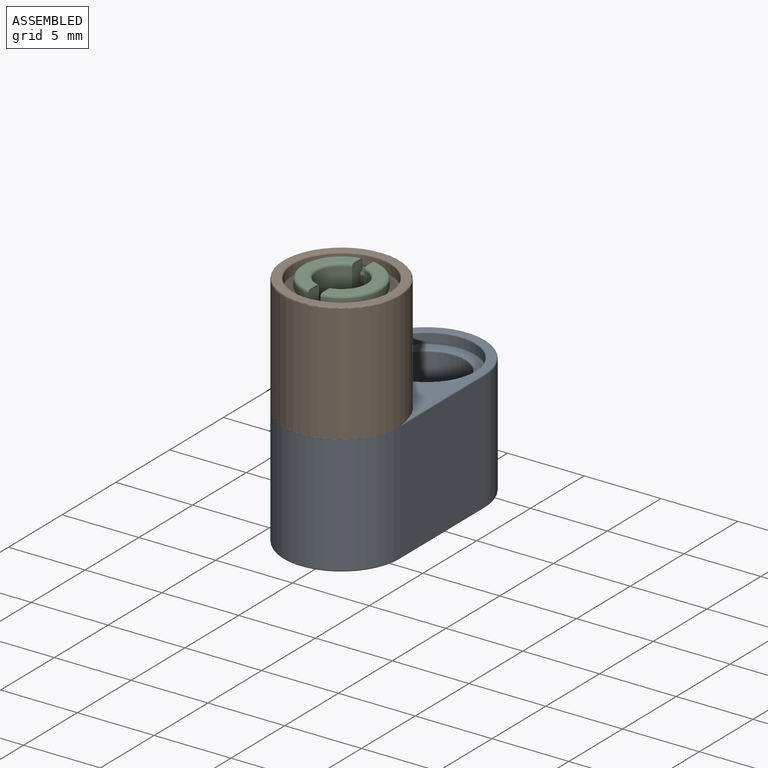
[diagram: assembled view]
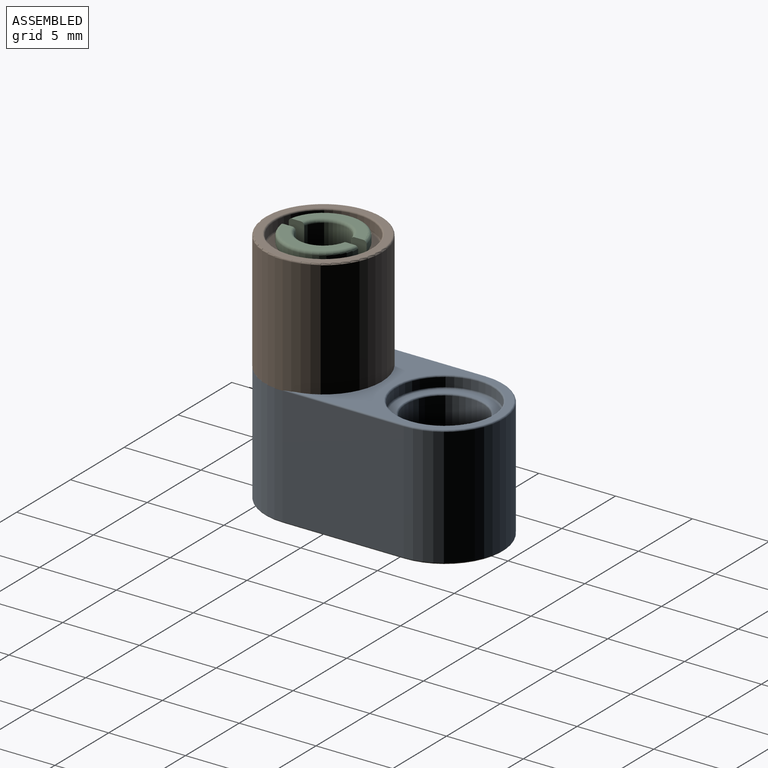
[diagram: assembled view, second angle]
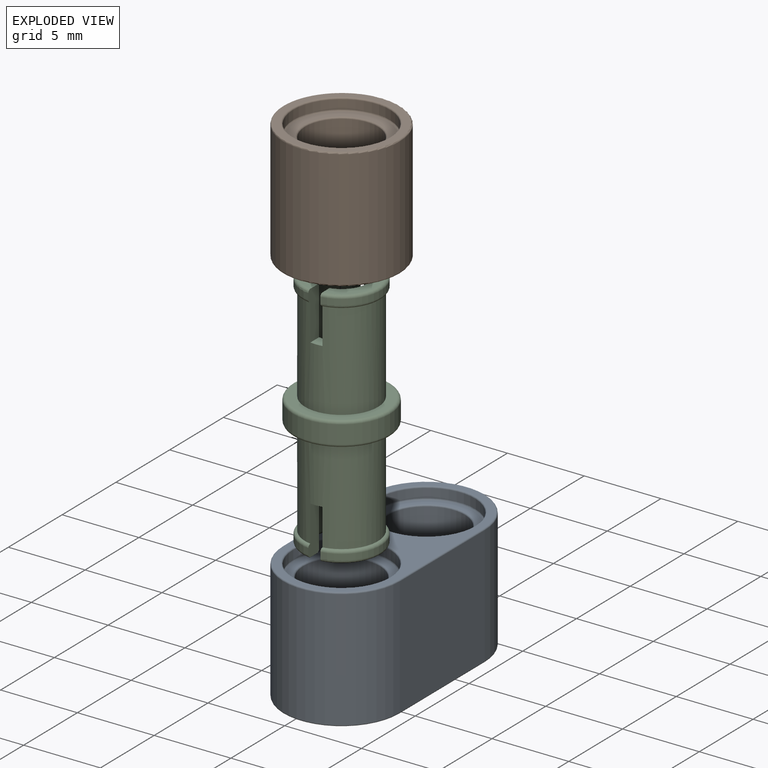
[diagram: exploded view]
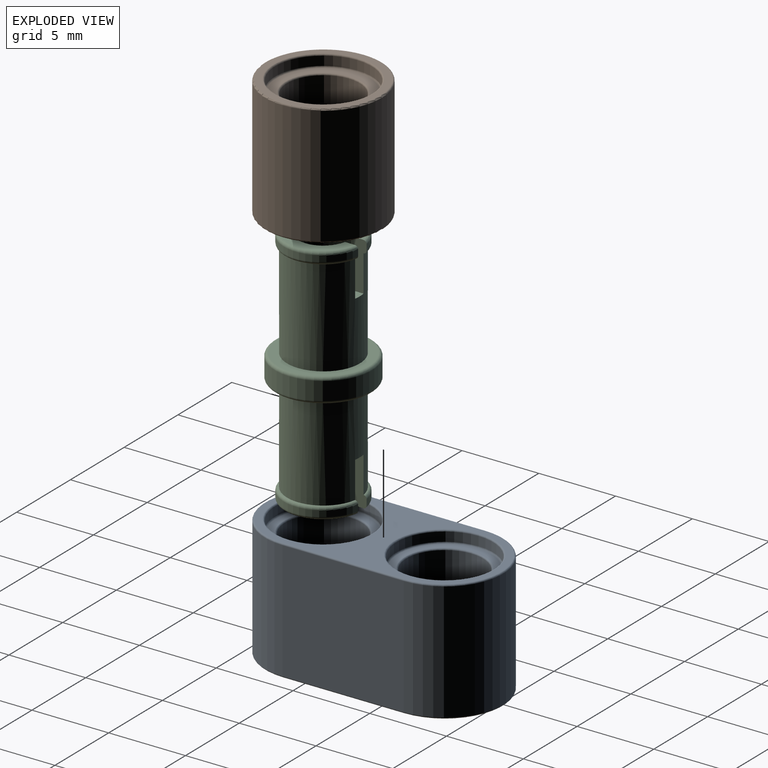
[diagram: exploded view, second angle]
ASSEMBLY  parts=3 mates=2
PART A: 36 faces, bbox 7.9x16.1x8.2 mm
  f0: torus R=3.05mm, axis (1,0,0), area 3.1mm2, adj f2,f3
  f1: torus R=2.6mm, axis (1,0,0), area 2.5mm2, adj f3,f4
  f2: cylinder r=3.15mm len=6.3mm, axis (1,0,0), area 11.7mm2, adj f0,f15
  f3: plane 6.1x6.1mm, normal (1,0,0), area 8mm2, adj f0,f1
  f4: cylinder r=2.5mm len=6.12mm, axis (1,0,0), area 96.1mm2, adj f1,f22
  f5: cylinder r=2.5mm len=6.12mm, axis (1,0,0), area 96.1mm2, adj f13,f28
  f6: cylinder r=3.8mm len=7.7mm, axis (1,0,0), area 91.9mm2, adj f7,f9,f17,f32
  f7: plane 7.9x7.7mm, normal (0,0,-1), area 60.8mm2, adj f6,f8,f19,f34
  f8: cylinder r=3.8mm len=7.7mm, axis (1,0,0), area 91.9mm2, adj f7,f9,f20,f35
  f9: plane 7.9x7.7mm, normal (0,0,1), area 60.8mm2, adj f6,f8,f18,f33
  f10: plane 15.3x7.4mm, normal (1,0,0), area 35.1mm2, adj f15,f16,f17,f18,f19,f20
  f11: cylinder r=3.15mm len=6.3mm, axis (1,0,0), area 11.7mm2, adj f14,f16
  f12: plane 6.1x6.1mm, normal (1,0,0), area 8mm2, adj f13,f14
  f13: torus R=2.6mm, axis (1,0,0), area 2.5mm2, adj f5,f12
  f14: torus R=3.05mm, axis (1,0,0), area 3.1mm2, adj f11,f12
  f15: torus R=3.25mm, axis (1,0,0), area 3.1mm2, adj f2,f10
  f16: torus R=3.25mm, axis (1,0,0), area 3.1mm2, adj f10,f11
  f17: torus R=3.7mm, axis (1,0,0), area 1.9mm2, adj f6,f10,f18,f19
  f18: cylinder r=0.1mm len=7.9mm, axis (0,-1,0), area 1.2mm2, adj f9,f10,f17,f20
  f19: cylinder r=0.1mm len=7.9mm, axis (0,1,0), area 1.2mm2, adj f7,f10,f17,f20
  f20: torus R=3.7mm, axis (1,0,0), area 1.9mm2, adj f8,f10,f18,f19
  f21: torus R=3.05mm, axis (-1,0,0), area 3.1mm2, adj f23,f24
  f22: torus R=2.6mm, axis (-1,0,0), area 2.5mm2, adj f4,f24
  f23: cylinder r=3.15mm len=6.3mm, axis (-1,0,0), area 11.7mm2, adj f21,f30
  f24: plane 6.1x6.1mm, normal (-1,0,0), area 8mm2, adj f21,f22
  f25: plane 15.3x7.4mm, normal (-1,0,0), area 35.1mm2, adj f30,f31,f32,f33,f34,f35
  f26: cylinder r=3.15mm len=6.3mm, axis (-1,0,0), area 11.7mm2, adj f29,f31
  f27: plane 6.1x6.1mm, normal (-1,0,0), area 8mm2, adj f28,f29
  f28: torus R=2.6mm, axis (-1,0,0), area 2.5mm2, adj f5,f27
  f29: torus R=3.05mm, axis (-1,0,0), area 3.1mm2, adj f26,f27
  f30: torus R=3.25mm, axis (-1,0,0), area 3.1mm2, adj f23,f25
  f31: torus R=3.25mm, axis (-1,0,0), area 3.1mm2, adj f25,f26
  f32: torus R=3.7mm, axis (-1,0,0), area 1.9mm2, adj f6,f25,f33,f34
  f33: cylinder r=0.1mm len=7.9mm, axis (0,-1,0), area 1.2mm2, adj f9,f25,f32,f35
  f34: cylinder r=0.1mm len=7.9mm, axis (0,1,0), area 1.2mm2, adj f7,f25,f32,f35
  f35: torus R=3.7mm, axis (-1,0,0), area 1.9mm2, adj f8,f25,f33,f34
PART B: 16 faces, bbox 7.9x8.2x8.2 mm
  f0: cylinder r=2.37mm len=6.12mm, axis (1,0,0), area 91.1mm2, adj f5,f12
  f1: cylinder r=3.8mm len=7.7mm, axis (1,0,0), area 183.8mm2, adj f8,f15
  f2: plane 7.4x7.4mm, normal (1,0,0), area 9.8mm2, adj f7,f8
  f3: cylinder r=3.15mm len=6.3mm, axis (1,0,0), area 11.7mm2, adj f6,f7
  f4: plane 6.1x6.1mm, normal (1,0,0), area 10.1mm2, adj f5,f6
  f5: torus R=2.47mm, axis (1,0,0), area 2.4mm2, adj f0,f4
  f6: torus R=3.05mm, axis (1,0,0), area 3.1mm2, adj f3,f4
  f7: torus R=3.25mm, axis (1,0,0), area 3.1mm2, adj f2,f3
  f8: torus R=3.7mm, axis (1,0,0), area 3.7mm2, adj f1,f2
  f9: plane 7.4x7.4mm, normal (-1,0,0), area 9.8mm2, adj f14,f15
  f10: cylinder r=3.15mm len=6.3mm, axis (-1,0,0), area 11.7mm2, adj f13,f14
  f11: plane 6.1x6.1mm, normal (-1,0,0), area 10.1mm2, adj f12,f13
  f12: torus R=2.47mm, axis (-1,0,0), area 2.4mm2, adj f0,f11
  f13: torus R=3.05mm, axis (-1,0,0), area 3.1mm2, adj f10,f11
  f14: torus R=3.25mm, axis (-1,0,0), area 3.1mm2, adj f9,f10
  f15: torus R=3.7mm, axis (-1,0,0), area 3.7mm2, adj f1,f9
PART C: 40 faces, bbox 6.9x6.9x15.8 mm
  f0: plane 4.67x1.97mm, normal (0,0,1), area 3.4mm2, adj f11,f12,f15,f19
  f1: cylinder r=2.57mm len=5.07mm, axis (0,0,-1), area 2.8mm2, adj f3,f4,f16,f18
  f2: torus R=1.78mm, axis (0,0,1), area 1.4mm2, adj f6,f7,f16,f18
  f3: torus R=2.37mm, axis (0,0,1), area 2.2mm2, adj f1,f7,f16,f18
  f4: torus R=2.37mm, axis (0,0,-1), area 2.2mm2, adj f1,f9,f16,f18
  f5: cylinder r=3.16mm len=6.32mm, axis (0,0,-1), area 23.4mm2, adj f14,f33
  f6: cylinder r=1.58mm len=15.4mm, axis (0,0,-1), area 143.4mm2, adj f2,f11,f15,f16,f17,f18,f19,f20
  f7: plane 4.67x1.97mm, normal (0,0,1), area 3.4mm2, adj f2,f3,f16,f18
  f8: cylinder r=2.57mm len=5.07mm, axis (0,0,-1), area 2.8mm2, adj f12,f13,f15,f19
  f9: cylinder r=2.37mm len=6.32mm, axis (0,0,-1), area 90.3mm2, adj f4,f10,f13,f15,f16,f17,f18,f19
  f10: plane 5.92x5.92mm, normal (0,0,1), area 9.9mm2, adj f9,f14
  f11: torus R=1.78mm, axis (0,0,1), area 1.4mm2, adj f0,f6,f15,f19
  f12: torus R=2.37mm, axis (0,0,1), area 2.2mm2, adj f0,f8,f15,f19
  f13: torus R=2.37mm, axis (0,0,-1), area 2.2mm2, adj f8,f9,f15,f19
  f14: torus R=2.96mm, axis (0,0,1), area 6.1mm2, adj f5,f10
  f15: plane 3.18x1.02mm, normal (-1,0,0), area 2.7mm2, adj f0,f6,f8,f9,f11,f12,f13,f17
  f16: plane 3.18x1.02mm, normal (1,0,0), area 2.7mm2, adj f1,f2,f3,f4,f6,f7,f9,f17
  f17: plane 0.84x0.79mm, normal (0,0,1), area 0.6mm2, adj f6,f9,f15,f16
  f18: plane 3.18x1.02mm, normal (1,0,0), area 2.7mm2, adj f1,f2,f3,f4,f6,f7,f9,f20
  f19: plane 3.18x1.02mm, normal (-1,0,0), area 2.7mm2, adj f0,f6,f8,f9,f11,f12,f13,f20
  f20: plane 0.84x0.79mm, normal (0,0,1), area 0.6mm2, adj f6,f9,f18,f19
  f21: plane 4.67x1.97mm, normal (0,0,-1), area 3.4mm2, adj f30,f31,f34,f38
  f22: cylinder r=2.57mm len=5.07mm, axis (0,0,1), area 2.8mm2, adj f24,f25,f35,f37
  f23: torus R=1.78mm, axis (0,0,-1), area 1.4mm2, adj f6,f26,f35,f37
  f24: torus R=2.37mm, axis (0,0,-1), area 2.2mm2, adj f22,f26,f35,f37
  f25: torus R=2.37mm, axis (0,0,1), area 2.2mm2, adj f22,f28,f35,f37
  f26: plane 4.67x1.97mm, normal (0,0,-1), area 3.4mm2, adj f23,f24,f35,f37
  f27: cylinder r=2.57mm len=5.07mm, axis (0,0,1), area 2.8mm2, adj f31,f32,f34,f38
  f28: cylinder r=2.37mm len=6.32mm, axis (0,0,1), area 90.3mm2, adj f25,f29,f32,f34,f35,f36,f37,f38
  f29: plane 5.92x5.92mm, normal (0,0,-1), area 9.9mm2, adj f28,f33
  f30: torus R=1.78mm, axis (0,0,-1), area 1.4mm2, adj f6,f21,f34,f38
  f31: torus R=2.37mm, axis (0,0,-1), area 2.2mm2, adj f21,f27,f34,f38
  f32: torus R=2.37mm, axis (0,0,1), area 2.2mm2, adj f27,f28,f34,f38
  f33: torus R=2.96mm, axis (0,0,-1), area 6.1mm2, adj f5,f29
  f34: plane 3.18x1.02mm, normal (-1,0,0), area 2.7mm2, adj f6,f21,f27,f28,f30,f31,f32,f36
  f35: plane 3.18x1.02mm, normal (1,0,0), area 2.7mm2, adj f6,f22,f23,f24,f25,f26,f28,f36
  f36: plane 0.84x0.79mm, normal (0,0,-1), area 0.6mm2, adj f6,f28,f34,f35
  f37: plane 3.18x1.02mm, normal (1,0,0), area 2.7mm2, adj f6,f22,f23,f24,f25,f26,f28,f39
  f38: plane 3.18x1.02mm, normal (-1,0,0), area 2.7mm2, adj f6,f21,f27,f28,f30,f31,f32,f39
  f39: plane 0.84x0.79mm, normal (0,0,-1), area 0.6mm2, adj f6,f28,f37,f38
PLACE A rot(axis=(0,-1,0),90deg) t=(0.85,4.08,-8.76)mm
PLACE B rot(axis=(0,-1,0),90deg) t=(0.85,4.08,-1.06)mm
PLACE C rot(axis=(0,1,0),0deg) t=(0.85,4.08,-8.86)mm
MATE revolute C.f1 <-> B.f0  axis (0,0,1) through (0.85,4.08,-8.07)mm
MATE revolute C.f1 <-> A.f5  axis (0,0,-1) through (0.85,4.08,-9.65)mm
